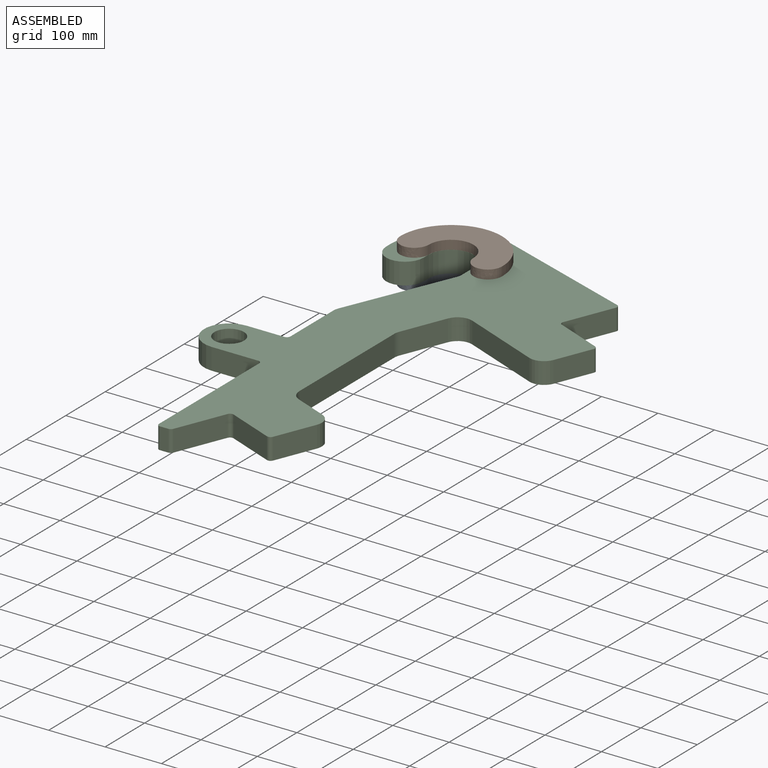
[diagram: assembled view]
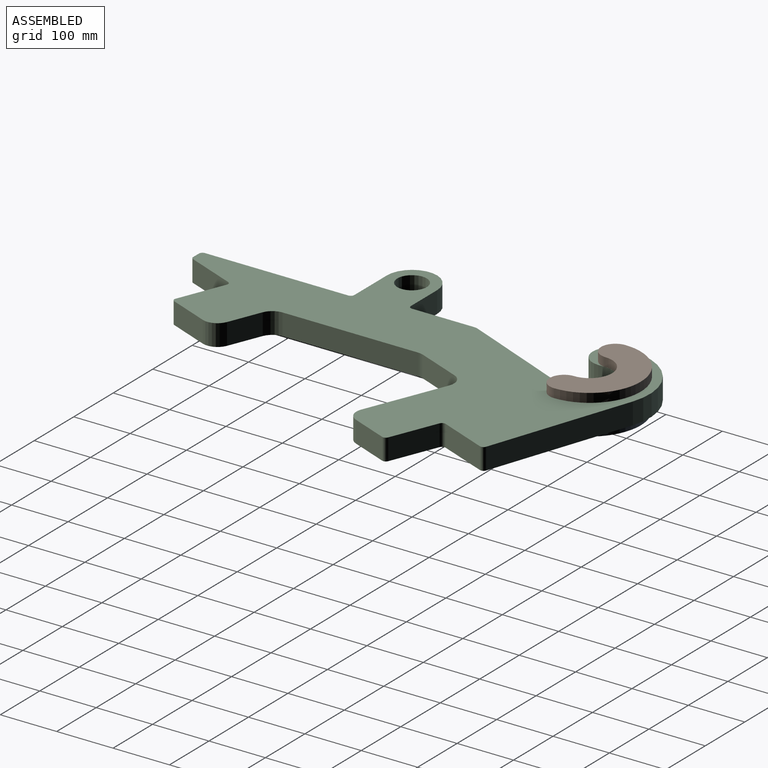
[diagram: assembled view, second angle]
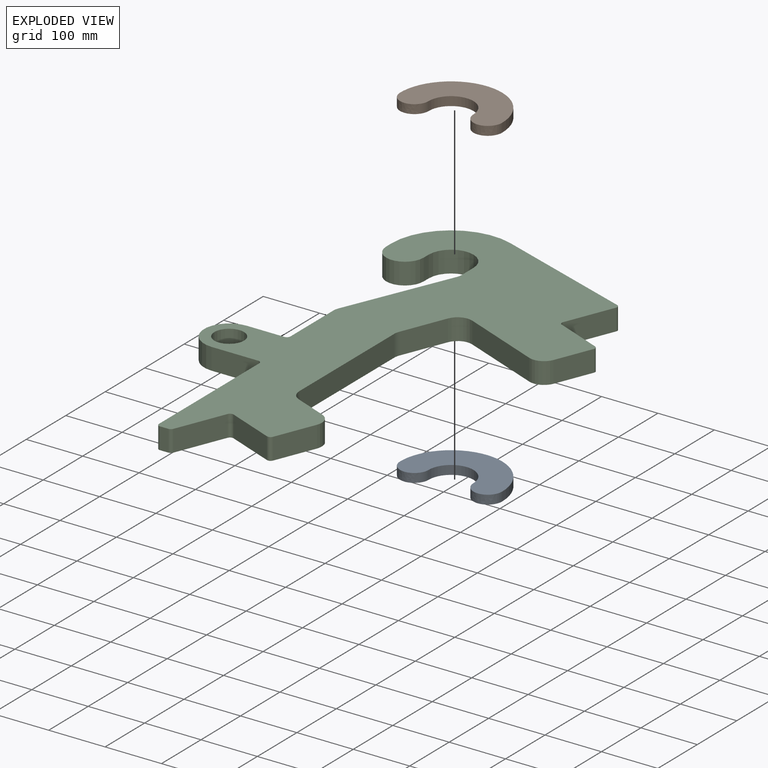
[diagram: exploded view]
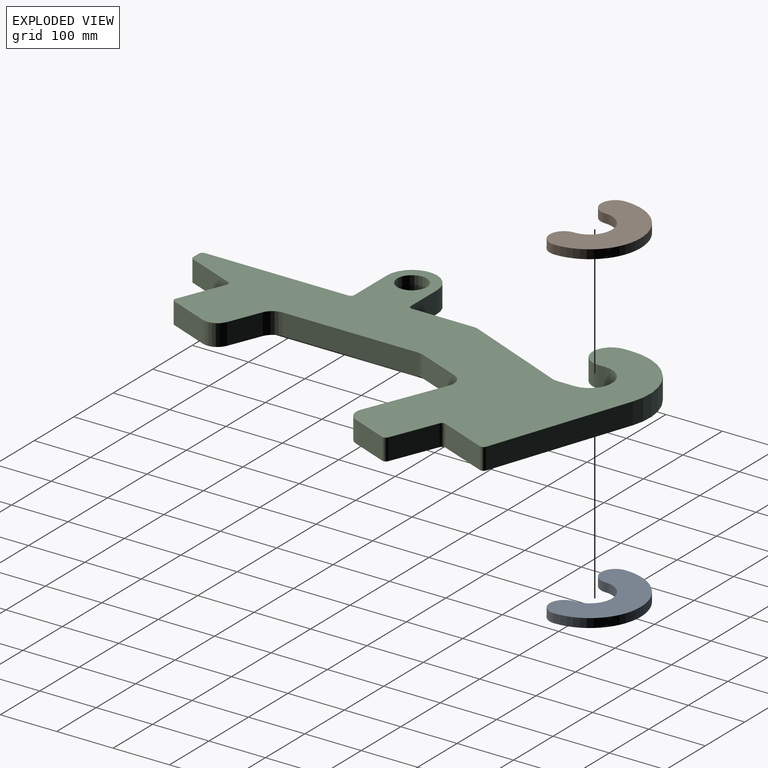
[diagram: exploded view, second angle]
ASSEMBLY  parts=3 mates=2
PART A: 6 faces, bbox 181x150.7x15.9 mm
  f0: extruded ~180.98x90.49mm, area 4512.9mm2, adj f1,f3,f4,f5
  f1: extruded ~50.8x25.4mm, area 1266.8mm2, adj f0,f2,f4,f5
  f2: cylinder r=39.69mm len=79.38mm, axis (0,0,-1), area 1979.3mm2, adj f1,f3,f4,f5
  f3: extruded ~50.8x25.4mm, area 1266.8mm2, adj f0,f2,f4,f5
  f4: plane 180.98x150.65mm, normal (0,0,1), area 12416.8mm2, adj f0,f1,f2,f3
  f5: plane 180.98x150.65mm, normal (0,0,-1), area 12416.8mm2, adj f0,f1,f2,f3
PART B: same geometry as A
PART C: 43 faces, bbox 503.6x813.6x38.1 mm
  f0: plane 87.14x38.1mm, normal (0.93,-0.38,0), area 3582.2mm2, adj f1,f39,f41,f42
  f1: cylinder r=6.35mm len=38.1mm, axis (0,0,-1), area 380mm2, adj f0,f2,f41,f42
  f2: plane 82.39x38.1mm, normal (-0.38,-0.93,0), area 3387.1mm2, adj f1,f3,f41,f42
  f3: cylinder r=6.35mm len=38.1mm, axis (0,0,-1), area 380mm2, adj f2,f4,f41,f42
  f4: plane 70.62x38.1mm, normal (0.93,-0.38,0), area 2903.2mm2, adj f3,f5,f41,f42
  f5: cylinder r=25.4mm len=38.1mm, axis (0,0,-1), area 1520.1mm2, adj f4,f6,f41,f42
  f6: plane 57.43x38.1mm, normal (0.38,0.93,0), area 2360.9mm2, adj f5,f7,f41,f42
  f7: cylinder r=25.4mm len=38.1mm, axis (0,0,-1), area 1147.5mm2, adj f6,f8,f41,f42
  f8: plane 240.78x38.1mm, normal (1,0,0), area 9173.5mm2, adj f7,f9,f41,f42
  f9: cylinder r=25.4mm len=38.1mm, axis (0,0,-1), area 372.6mm2, adj f8,f10,f41,f42
  f10: plane 78.34x38.1mm, normal (0.93,-0.38,0), area 3220.4mm2, adj f9,f11,f41,f42
  f11: cylinder r=25.4mm len=38.1mm, axis (0,0,-1), area 1520.1mm2, adj f10,f12,f41,f42
  f12: plane 141.24x57.24mm, normal (-0.38,-0.93,0), area 5806.4mm2, adj f11,f13,f41,f42
  f13: cylinder r=25.4mm len=38.1mm, axis (0,0,-1), area 1520.1mm2, adj f12,f14,f41,f42
  f14: plane 64.74x38.1mm, normal (0.93,-0.38,0), area 2661.3mm2, adj f13,f15,f41,f42
  f15: cylinder r=6.35mm len=38.1mm, axis (0,0,-1), area 380mm2, adj f14,f16,f41,f42
  f16: plane 82.39x38.1mm, normal (0.38,0.93,0), area 3387.1mm2, adj f15,f17,f41,f42
  f17: cylinder r=6.35mm len=38.1mm, axis (0,0,-1), area 380mm2, adj f16,f18,f41,f42
  f18: plane 84.88x38.1mm, normal (0.93,-0.38,0), area 3489.4mm2, adj f17,f19,f41,f42
  f19: cylinder r=6.35mm len=38.1mm, axis (0,0,-1), area 393.5mm2, adj f18,f20,f41,f42
  f20: plane 249.6x85.36mm, normal (0.32,0.95,0), area 10050.3mm2, adj f19,f21,f41,f42
  f21: cylinder r=106.19mm len=140.55mm, axis (0,0,-1), area 7688.5mm2, adj f20,f22,f41,f42
  f22: plane 38.1x12.7mm, normal (-1,0,0), area 483.9mm2, adj f21,f23,f41,f42
  f23: cylinder r=33.25mm len=66.5mm, axis (0,0,-1), area 3980.1mm2, adj f22,f24,f41,f42
  f24: plane 38.1x12.7mm, normal (1,0,0), area 483.9mm2, adj f23,f25,f41,f42
  f25: cylinder r=39.69mm len=79.38mm, axis (0,0,-1), area 4750.4mm2, adj f24,f26,f41,f42
  f26: plane 38.1x29.8mm, normal (-1,0,0), area 1135.3mm2, adj f25,f27,f41,f42
  f27: cylinder r=25.4mm len=38.1mm, axis (0,0,-1), area 385.5mm2, adj f26,f28,f41,f42
  f28: plane 186.83x78.64mm, normal (-0.92,0.39,0), area 7722.9mm2, adj f27,f29,f41,f42
  f29: cylinder r=25.4mm len=38.1mm, axis (0,0,-1), area 385.5mm2, adj f28,f30,f41,f42
  f30: plane 109.17x38.1mm, normal (-1,0,0), area 4159.5mm2, adj f29,f31,f41,f42
  f31: cylinder r=6.35mm len=38.1mm, axis (0,0,-1), area 380mm2, adj f30,f32,f41,f42
  f32: plane 66.68x38.1mm, normal (0,1,0), area 2540.3mm2, adj f31,f33,f41,f42
  f33: cylinder r=44.45mm len=88.9mm, axis (0,0,-1), area 5320.4mm2, adj f32,f34,f41,f42
  f34: plane 82.55x38.1mm, normal (0,-1,0), area 3145.2mm2, adj f33,f35,f41,f42
  f35: cylinder r=6.35mm len=38.1mm, axis (0,0,-1), area 380mm2, adj f34,f36,f41,f42
  f36: plane 254x38.1mm, normal (-1,0,0), area 9677.4mm2, adj f35,f37,f41,f42
  f37: cylinder r=6.35mm len=38.1mm, axis (0,0,-1), area 380mm2, adj f36,f38,f41,f42
  f38: plane 38.1x14.77mm, normal (0,-1,0), area 562.8mm2, adj f37,f39,f41,f42
  f39: cylinder r=6.35mm len=38.1mm, axis (0,0,-1), area 286.9mm2, adj f0,f38,f41,f42
  f40: cylinder r=26.19mm len=52.39mm, axis (0,0,-1), area 6270.5mm2, adj f41,f42
  f41: plane 813.65x503.65mm, normal (0,0,1), area 146665.8mm2, adj f0,f1,f2,f3,f4,f5,f6,f7
  f42: plane 813.65x503.65mm, normal (0,0,-1), area 146665.8mm2, adj f0,f1,f2,f3,f4,f5,f6,f7
PLACE A t=(114.3,-311.15,-73.03)mm
PLACE B t=(114.3,-311.15,-19.05)mm
PLACE C t=(114.3,-311.15,-19.05)mm
MATE fastened A.f2 <-> C.f21  axis (0,0,1) through (115.95,396.3,-38.1)mm
MATE fastened B.f2 <-> C.f21  axis (0,0,-1) through (115.95,396.3,0)mm
